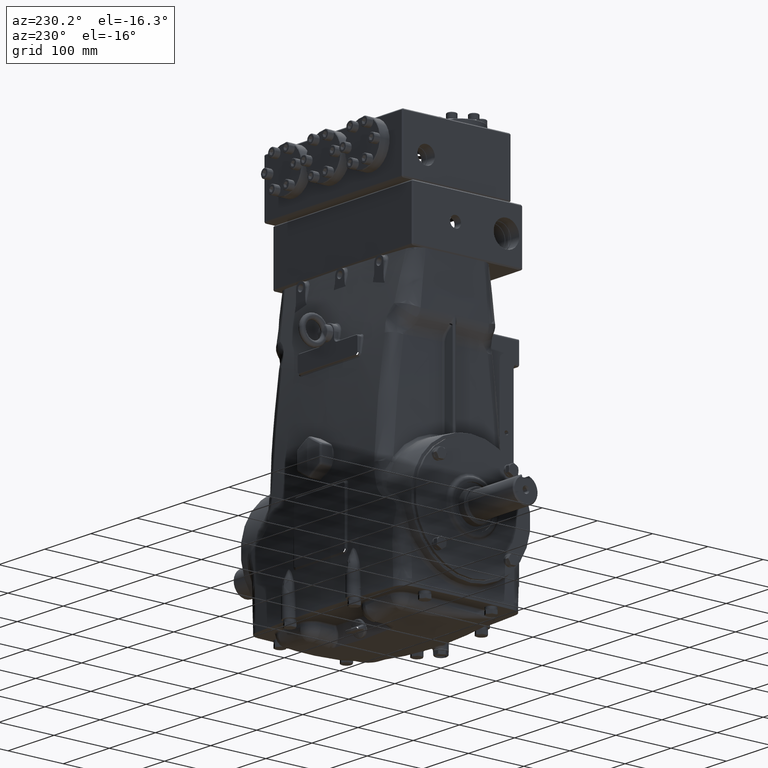
[diagram: clean part render]
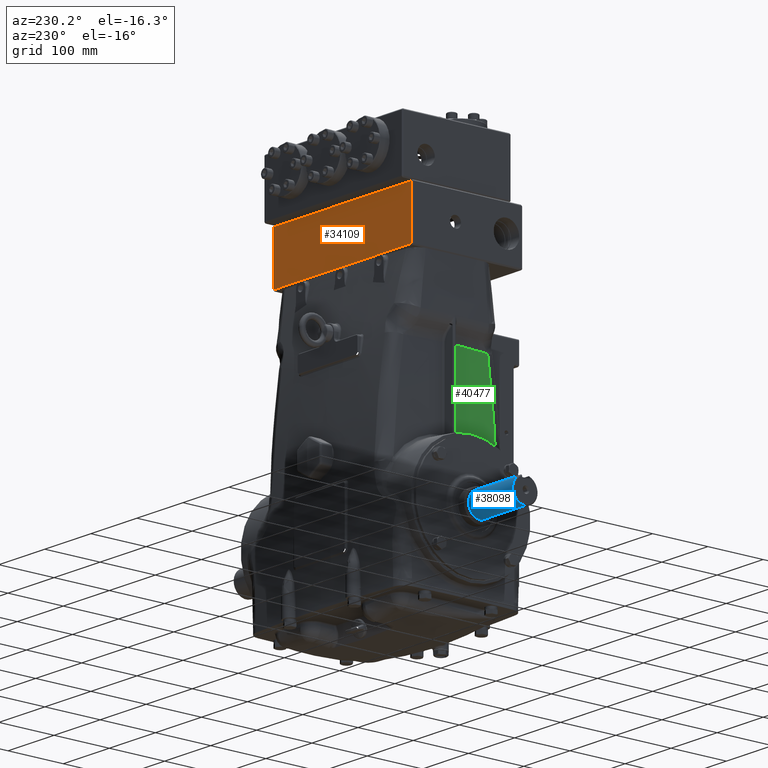
[diagram: same view with three faces highlighted in distinct colors, each labeled with its STEP entity id]
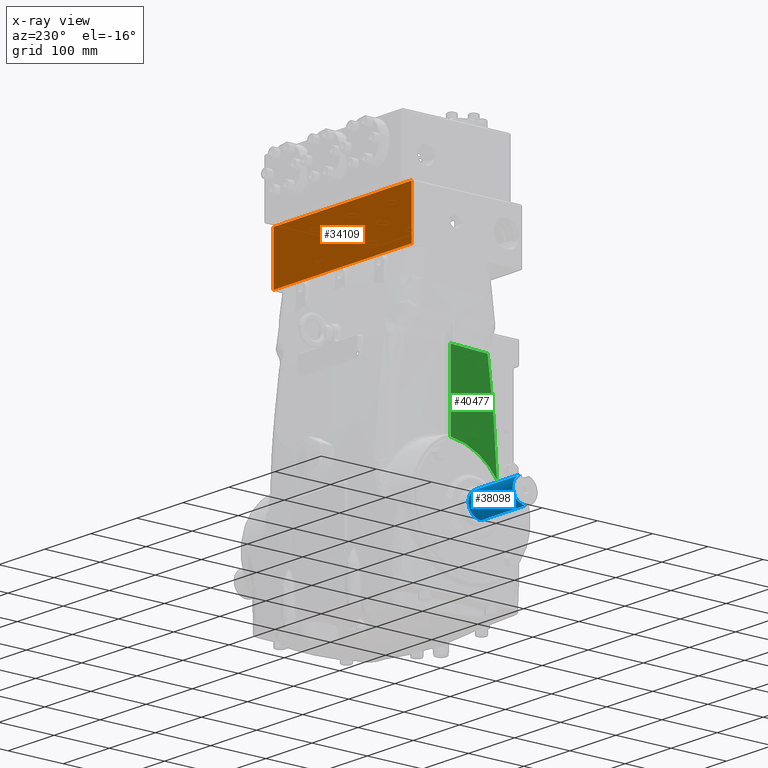
[diagram: x-ray of the same camera — body ghosted, the three highlighted faces saturated]
A machine part, auxiliary view with three faces highlighted in distinct colors.
The next image is the same camera in x-ray (body ghosted, the three faces saturated) — at least one of them is partly hidden behind the body in this view.
Their STEP definitions:

[orange] entity #34109 — the highlighted planar face has unit normal (0, -1, 0).
#4106 = CARTESIAN_POINT ( 'NONE',  ( -5.984251968503936148, 3.070866141732284227, 18.42519685039369648 ) ) ;
#10786 = LINE ( 'NONE', #65255, #40501 ) ;
#13593 = PLANE ( 'NONE',  #21758 ) ;
#15223 = ORIENTED_EDGE ( 'NONE', *, *, #48543, .T. ) ;
#20344 = FACE_OUTER_BOUND ( 'NONE', #65894, .T. ) ;
#20621 = VERTEX_POINT ( 'NONE', #70660 ) ;
#21686 = ORIENTED_EDGE ( 'NONE', *, *, #77510, .T. ) ;
#21758 = AXIS2_PLACEMENT_3D ( 'NONE', #57204, #50785, #43615 ) ;
#22442 = EDGE_CURVE ( 'NONE', #73790, #68590, #40927, .T. ) ;
#28117 = DIRECTION ( 'NONE',  ( 1.000000000000000000, 0.000000000000000000, 0.000000000000000000 ) ) ;
#28878 = LINE ( 'NONE', #59322, #33754 ) ;
#31814 = VECTOR ( 'NONE', #28117, 39.37007874015748143 ) ;
#33754 = VECTOR ( 'NONE', #54865, 39.37007874015748143 ) ;
#34109 = ADVANCED_FACE ( 'NONE', ( #20344 ), #13593, .F. ) ;
#34757 = CARTESIAN_POINT ( 'NONE',  ( 5.905511811023621327, 3.070866141732284227, 18.50393700787401130 ) ) ;
#40385 = DIRECTION ( 'NONE',  ( 0.000000000000000000, 0.000000000000000000, -1.000000000000000000 ) ) ;
#40501 = VECTOR ( 'NONE', #71252, 39.37007874015748143 ) ;
#40798 = CARTESIAN_POINT ( 'NONE',  ( 5.905511811023621327, 3.070866141732284227, 14.84251968503936858 ) ) ;
#40927 = LINE ( 'NONE', #4106, #31814 ) ;
#43615 = DIRECTION ( 'NONE',  ( 0.000000000000000000, -0.000000000000000000, -1.000000000000000000 ) ) ;
#43692 = EDGE_CURVE ( 'NONE', #68590, #76918, #64832, .T. ) ;
#45460 = CARTESIAN_POINT ( 'NONE',  ( -5.905511811023619551, 3.070866141732284227, 18.42519685039369648 ) ) ;
#48543 = EDGE_CURVE ( 'NONE', #20621, #73790, #10786, .T. ) ;
#50785 = DIRECTION ( 'NONE',  ( 0.000000000000000000, -1.000000000000000000, 0.000000000000000000 ) ) ;
#54467 = VECTOR ( 'NONE', #40385, 39.37007874015748143 ) ;
#54865 = DIRECTION ( 'NONE',  ( -1.000000000000000000, 0.000000000000000000, 0.000000000000000000 ) ) ;
#57204 = CARTESIAN_POINT ( 'NONE',  ( -5.984251968503936148, 3.070866141732284227, 18.50393700787401130 ) ) ;
#59322 = CARTESIAN_POINT ( 'NONE',  ( -5.984251968503936148, 3.070866141732284227, 14.84251968503936858 ) ) ;
#59608 = ORIENTED_EDGE ( 'NONE', *, *, #22442, .T. ) ;
#63082 = ORIENTED_EDGE ( 'NONE', *, *, #43692, .T. ) ;
#64832 = LINE ( 'NONE', #34757, #54467 ) ;
#65255 = CARTESIAN_POINT ( 'NONE',  ( -5.905511811023619551, 3.070866141732284227, 18.50393700787401130 ) ) ;
#65894 = EDGE_LOOP ( 'NONE', ( #59608, #63082, #21686, #15223 ) ) ;
#68105 = CARTESIAN_POINT ( 'NONE',  ( 5.905511811023621327, 3.070866141732284227, 18.42519685039369648 ) ) ;
#68590 = VERTEX_POINT ( 'NONE', #68105 ) ;
#70660 = CARTESIAN_POINT ( 'NONE',  ( -5.905511811023619551, 3.070866141732284227, 14.84251968503936858 ) ) ;
#71252 = DIRECTION ( 'NONE',  ( 0.000000000000000000, 0.000000000000000000, 1.000000000000000000 ) ) ;
#73790 = VERTEX_POINT ( 'NONE', #45460 ) ;
#76918 = VERTEX_POINT ( 'NONE', #40798 ) ;
#77510 = EDGE_CURVE ( 'NONE', #76918, #20621, #28878, .T. ) ;

[blue] entity #38098 — the highlighted cylindrical surface (edge-blend (fillet) strip) has radius 22.5 mm, axis along (1, -0, -0).
#1081 = CARTESIAN_POINT ( 'NONE',  ( -8.149606299212598159, 0.000000000000000000, -0.8858267716535433989 ) ) ;
#1526 = LINE ( 'NONE', #30376, #25406 ) ;
#1729 = CIRCLE ( 'NONE', #62940, 0.8858267716535433989 ) ;
#4573 = ORIENTED_EDGE ( 'NONE', *, *, #22834, .T. ) ;
#4799 = CARTESIAN_POINT ( 'NONE',  ( -8.149606299212598159, 0.1928732080931631621, 0.8645744588975492473 ) ) ;
#4987 = CARTESIAN_POINT ( 'NONE',  ( -8.149606299212598159, 0.1928732080931631621, 0.8645744588975492473 ) ) ;
#9686 = CARTESIAN_POINT ( 'NONE',  ( -11.92913385826771488, 0.000000000000000000, -0.8858267716535433989 ) ) ;
#9756 = AXIS2_PLACEMENT_3D ( 'NONE', #68649, #18200, #62243 ) ;
#10877 = CARTESIAN_POINT ( 'NONE',  ( -8.346456692913385211, 0.2755905511811023167, 0.8418663299347676210 ) ) ;
#12056 = DIRECTION ( 'NONE',  ( 1.000000000000000000, 0.000000000000000000, 0.000000000000000000 ) ) ;
#12446 = DIRECTION ( 'NONE',  ( 0.000000000000000000, 0.000000000000000000, 1.000000000000000000 ) ) ;
#16304 = B_SPLINE_CURVE_WITH_KNOTS ( 'NONE', 3,
 ( #16613, #36584, #61025, #78222, #36190, #59440, #71465, #78628, #42205, #65459, #53407, #4987 ),
 .UNSPECIFIED., .F., .F.,
 ( 4, 2, 2, 2, 2, 4 ),
 ( 0.03303125845881526440, 0.03442592873111393476, 0.03512326386726327687, 0.03582059900341261205, 0.03721526927571120608, 0.03860993954800980704 ),
 .UNSPECIFIED. ) ;
#16613 = CARTESIAN_POINT ( 'NONE',  ( -8.346456692913385211, 0.2755905511811023167, 0.8418663299347676210 ) ) ;
#18200 = DIRECTION ( 'NONE',  ( 1.000000000000000000, -0.000000000000000000, -0.000000000000000000 ) ) ;
#19113 = LINE ( 'NONE', #54356, #78478 ) ;
#19941 = EDGE_CURVE ( 'NONE', #32605, #77555, #19113, .T. ) ;
#22165 = EDGE_CURVE ( 'NONE', #76443, #47158, #1526, .T. ) ;
#22301 = ORIENTED_EDGE ( 'NONE', *, *, #19941, .T. ) ;
#22834 = EDGE_CURVE ( 'NONE', #24456, #47158, #38271, .T. ) ;
#23804 = EDGE_CURVE ( 'NONE', #77555, #24456, #16304, .T. ) ;
#24456 = VERTEX_POINT ( 'NONE', #4799 ) ;
#25406 = VECTOR ( 'NONE', #79209, 39.37007874015748143 ) ;
#26828 = CARTESIAN_POINT ( 'NONE',  ( -8.149606299212598159, 0.000000000000000000, 0.000000000000000000 ) ) ;
#30376 = CARTESIAN_POINT ( 'NONE',  ( -12.00787401574803148, 0.000000000000000000, -0.8858267716535433989 ) ) ;
#32605 = VERTEX_POINT ( 'NONE', #51333 ) ;
#35595 = ORIENTED_EDGE ( 'NONE', *, *, #22165, .F. ) ;
#36190 = CARTESIAN_POINT ( 'NONE',  ( -8.273831540955416841, 0.2660081615870608096, 0.8449478243775108144 ) ) ;
#36584 = CARTESIAN_POINT ( 'NONE',  ( -8.328048650773355988, 0.2755905511811023167, 0.8418663299347677320 ) ) ;
#37270 = ORIENTED_EDGE ( 'NONE', *, *, #62625, .T. ) ;
#37528 = DIRECTION ( 'NONE',  ( 1.000000000000000000, -0.000000000000000000, -0.000000000000000000 ) ) ;
#37786 = CYLINDRICAL_SURFACE ( 'NONE', #9756, 0.8858267716535433989 ) ;
#38098 = ADVANCED_FACE ( 'NONE', ( #73051 ), #37786, .T. ) ;
#38271 = CIRCLE ( 'NONE', #61264, 0.8858267716535433989 ) ;
#41835 = ORIENTED_EDGE ( 'NONE', *, *, #23804, .T. ) ;
#42205 = CARTESIAN_POINT ( 'NONE',  ( -8.206439432833089853, 0.2380775653955209403, 0.8533006799603867210 ) ) ;
#46447 = DIRECTION ( 'NONE',  ( -1.000000000000000000, -0.000000000000000000, -0.000000000000000000 ) ) ;
#47158 = VERTEX_POINT ( 'NONE', #1081 ) ;
#51333 = CARTESIAN_POINT ( 'NONE',  ( -11.92913385826771488, 0.2755905511811023723, 0.8418663299347676210 ) ) ;
#53407 = CARTESIAN_POINT ( 'NONE',  ( -8.162281857735829149, 0.2058101458376213333, 0.8616884279027676730 ) ) ;
#53497 = EDGE_LOOP ( 'NONE', ( #35595, #37270, #22301, #41835, #4573 ) ) ;
#54356 = CARTESIAN_POINT ( 'NONE',  ( -12.00787401574803148, 0.2755905511811023723, 0.8418663299347676210 ) ) ;
#59440 = CARTESIAN_POINT ( 'NONE',  ( -8.256256591702035408, 0.2605737831580675623, 0.8466395168440399299 ) ) ;
#61025 = CARTESIAN_POINT ( 'NONE',  ( -8.309843054043708932, 0.2737645916743658425, 0.8424705524659445999 ) ) ;
#61264 = AXIS2_PLACEMENT_3D ( 'NONE', #26828, #46447, #75668 ) ;
#62243 = DIRECTION ( 'NONE',  ( 0.000000000000000000, 0.000000000000000000, -1.000000000000000000 ) ) ;
#62625 = EDGE_CURVE ( 'NONE', #76443, #32605, #1729, .T. ) ;
#62940 = AXIS2_PLACEMENT_3D ( 'NONE', #73675, #12056, #12446 ) ;
#65459 = CARTESIAN_POINT ( 'NONE',  ( -8.176158698653624768, 0.2174496571994400385, 0.8587890451964108607 ) ) ;
#68649 = CARTESIAN_POINT ( 'NONE',  ( -12.00787401574803148, 0.000000000000000000, 0.000000000000000000 ) ) ;
#71465 = CARTESIAN_POINT ( 'NONE',  ( -8.247672423414783793, 0.2574387835319232876, 0.8476013228573848757 ) ) ;
#73051 = FACE_OUTER_BOUND ( 'NONE', #53497, .T. ) ;
#73675 = CARTESIAN_POINT ( 'NONE',  ( -11.92913385826771488, 0.000000000000000000, 0.000000000000000000 ) ) ;
#75668 = DIRECTION ( 'NONE',  ( 0.000000000000000000, 0.000000000000000000, -1.000000000000000000 ) ) ;
#76443 = VERTEX_POINT ( 'NONE', #9686 ) ;
#77555 = VERTEX_POINT ( 'NONE', #10877 ) ;
#78222 = CARTESIAN_POINT ( 'NONE',  ( -8.282834589034013817, 0.2683034557635587403, 0.8442191531324452214 ) ) ;
#78478 = VECTOR ( 'NONE', #37528, 39.37007874015748143 ) ;
#78628 = CARTESIAN_POINT ( 'NONE',  ( -8.222506535139412875, 0.2468160030345873113, 0.8507793906857140653 ) ) ;
#79209 = DIRECTION ( 'NONE',  ( 1.000000000000000000, -0.000000000000000000, -0.000000000000000000 ) ) ;

[green] entity #40477 — the highlighted cylindrical surface (partial cylindrical patch) has radius 1800 mm, axis along (-0, -0, -1).
#865 = VERTEX_POINT ( 'NONE', #25848 ) ;
#1311 = EDGE_CURVE ( 'NONE', #35779, #1913, #11469, .T. ) ;
#1913 = VERTEX_POINT ( 'NONE', #17518 ) ;
#3621 = CARTESIAN_POINT ( 'NONE',  ( -5.133643484345161490, -2.992401122897866639, 9.854557714864595752 ) ) ;
#3641 = CARTESIAN_POINT ( 'NONE',  ( -5.133643484345161490, -2.992401122897866639, 9.854557714864595752 ) ) ;
#5896 = CARTESIAN_POINT ( 'NONE',  ( -5.165066211405673791, -2.123480648525600145, 4.102591311547394426 ) ) ;
#11469 = B_SPLINE_CURVE_WITH_KNOTS ( 'NONE', 3,
 ( #66082, #46064, #78063, #65696, #76874, #3641 ),
 .UNSPECIFIED., .F., .F.,
 ( 4, 2, 4 ),
 ( 0.04389072724056460040, 0.5219453636202823210, 1.000000000000000000 ),
 .UNSPECIFIED. ) ;
#16121 = ORIENTED_EDGE ( 'NONE', *, *, #1311, .T. ) ;
#16729 = CARTESIAN_POINT ( 'NONE',  ( -5.173426028039020963, -1.823537640727141529, 4.244562815254782961 ) ) ;
#17513 = CARTESIAN_POINT ( 'NONE',  ( -5.188021273809281020, -1.119331715516740156, 4.481553960286488447 ) ) ;
#17518 = CARTESIAN_POINT ( 'NONE',  ( -5.133643484345161490, -2.992401122897866639, 9.854557714864595752 ) ) ;
#18218 = CARTESIAN_POINT ( 'NONE',  ( -5.100595819511899442, -3.692304923845031173, 2.773909705513609048 ) ) ;
#21805 = DIRECTION ( 'NONE',  ( -0.000000000000000000, -0.000000000000000000, -1.000000000000000000 ) ) ;
#23888 = CARTESIAN_POINT ( 'NONE',  ( -5.122000726478345811, -3.265992110169547047, 3.282432722865731733 ) ) ;
#24056 = AXIS2_PLACEMENT_3D ( 'NONE', #60260, #61454, #67465 ) ;
#25848 = CARTESIAN_POINT ( 'NONE',  ( -5.196215431379319405, -0.2999892675408380449, 4.609363232524455789 ) ) ;
#27540 = CARTESIAN_POINT ( 'NONE',  ( -5.195514194348325177, -0.4656403134758554940, 4.598683433878208326 ) ) ;
#28328 = CARTESIAN_POINT ( 'NONE',  ( -5.196215431379319405, -0.2999892675408380449, 4.609363232524455789 ) ) ;
#30314 = CARTESIAN_POINT ( 'NONE',  ( -5.134075517361358365, -2.982328130988832537, 3.526786498855915664 ) ) ;
#32161 =( BOUNDED_CURVE ( )  B_SPLINE_CURVE ( 3, ( #3621, #33234, #69700, #75277 ),
 .UNSPECIFIED., .F., .F. ) 
 B_SPLINE_CURVE_WITH_KNOTS ( ( 4, 4 ),
 ( 3.099353990276439319, 3.137359459100741876 ),
 .UNSPECIFIED. ) 
 CURVE ( )  GEOMETRIC_REPRESENTATION_ITEM ( )  RATIONAL_B_SPLINE_CURVE ( ( 1.000000000000000000, 0.9998796356503556471, 0.9998796356503556471, 1.000000000000000000 ) ) 
 REPRESENTATION_ITEM ( '' )  );
#33234 = CARTESIAN_POINT ( 'NONE',  ( -5.171554968579290090, -2.095380891642889321, 9.894907949546533743 ) ) ;
#33438 = LINE ( 'NONE', #65472, #43478 ) ;
#33548 = CARTESIAN_POINT ( 'NONE',  ( -5.193597701055737481, -0.7125648010901552976, 4.569175118487661891 ) ) ;
#35519 = CARTESIAN_POINT ( 'NONE',  ( -5.188646233820334963, -1.079063765704768363, 4.491422358675049686 ) ) ;
#35779 = VERTEX_POINT ( 'NONE', #18218 ) ;
#36317 = CARTESIAN_POINT ( 'NONE',  ( -5.183270686076545175, -1.399232717278946936, 4.406127704644263510 ) ) ;
#36593 = ORIENTED_EDGE ( 'NONE', *, *, #51832, .T. ) ;
#36823 = ORIENTED_EDGE ( 'NONE', *, *, #73864, .T. ) ;
#37481 = EDGE_CURVE ( 'NONE', #865, #35779, #56631, .T. ) ;
#40477 = ADVANCED_FACE ( 'NONE', ( #55827 ), #67083, .T. ) ;
#41136 = CARTESIAN_POINT ( 'NONE',  ( -5.111039276704646639, -3.492136654345209035, 3.040523931603120289 ) ) ;
#41545 = CARTESIAN_POINT ( 'NONE',  ( -5.135414459992356129, -2.950376417423476116, 3.553573117918144675 ) ) ;
#43478 = VECTOR ( 'NONE', #21805, 39.37007874015748143 ) ;
#46064 = CARTESIAN_POINT ( 'NONE',  ( -5.103828160289030080, -3.630351101762269383, 3.958572081734730741 ) ) ;
#47135 = CARTESIAN_POINT ( 'NONE',  ( -5.100595819511899442, -3.692304923845031173, 2.773909705513609048 ) ) ;
#51832 = EDGE_CURVE ( 'NONE', #1913, #70430, #32161, .T. ) ;
#54714 = CARTESIAN_POINT ( 'NONE',  ( -5.158274144286483676, -2.342510202033403210, 3.984190492515086390 ) ) ;
#55827 = FACE_OUTER_BOUND ( 'NONE', #71182, .T. ) ;
#56631 = B_SPLINE_CURVE_WITH_KNOTS ( 'NONE', 3,
 ( #28328, #27540, #33548, #72364, #35519, #17513, #77566, #36317, #79141, #16729, #71971, #66763, #5896, #54714, #59565, #78751, #77962, #59949, #41545, #30314, #23888, #41136, #47135 ),
 .UNSPECIFIED., .F., .F.,
 ( 4, 1, 2, 2, 1, 2, 2, 2, 2, 1, 2, 2, 4 ),
 ( 0.5349815307263874331, 0.5931088393855890040, 0.6221724937151897894, 0.6367043208799900711, 0.6512361480447904638, 0.7093634567039918126, 0.7384271110335925981, 0.7674907653631933835, 0.8256180740223948433, 0.8546817283519956288, 0.8692135555167959104, 0.8837453826815961921, 1.000000000000000000 ),
 .UNSPECIFIED. ) ;
#59371 = CARTESIAN_POINT ( 'NONE',  ( -5.196215436301595325, -0.2999892646748456015, 9.921154763145716871 ) ) ;
#59565 = CARTESIAN_POINT ( 'NONE',  ( -5.153446341030536004, -2.483637912582461915, 3.897761962973881555 ) ) ;
#59949 = CARTESIAN_POINT ( 'NONE',  ( -5.138070648953320330, -2.885926643782870560, 3.606155695421672025 ) ) ;
#60260 = CARTESIAN_POINT ( 'NONE',  ( 65.66929133858268131, 0.000000000000000000, 14.76377952755905376 ) ) ;
#61454 = DIRECTION ( 'NONE',  ( -0.000000000000000000, -0.000000000000000000, -1.000000000000000000 ) ) ;
#65472 = CARTESIAN_POINT ( 'NONE',  ( -5.196215436301595325, -0.2999892646748388847, 14.76377952755905376 ) ) ;
#65696 = CARTESIAN_POINT ( 'NONE',  ( -5.119707369558231136, -3.307770205336899139, 7.501170375224280207 ) ) ;
#66082 = CARTESIAN_POINT ( 'NONE',  ( -5.100595819511899442, -3.692304923845031173, 2.773909705513609048 ) ) ;
#66763 = CARTESIAN_POINT ( 'NONE',  ( -5.167258175948661325, -2.049126111418044349, 4.140242007501620414 ) ) ;
#67083 = CYLINDRICAL_SURFACE ( 'NONE', #24056, 70.86614173228348079 ) ;
#67465 = DIRECTION ( 'NONE',  ( -1.000000000000000000, 0.000000000000000000, 0.000000000000000000 ) ) ;
#69700 = CARTESIAN_POINT ( 'NONE',  ( -5.192414796677748967, -1.197802235764045875, 9.917109637932032484 ) ) ;
#70430 = VERTEX_POINT ( 'NONE', #59371 ) ;
#71182 = EDGE_LOOP ( 'NONE', ( #36593, #36823, #72251, #16121 ) ) ;
#71971 = CARTESIAN_POINT ( 'NONE',  ( -5.171435348120543729, -1.899238648764080439, 4.211186385603319593 ) ) ;
#72251 = ORIENTED_EDGE ( 'NONE', *, *, #37481, .T. ) ;
#72364 = CARTESIAN_POINT ( 'NONE',  ( -5.190432770838087961, -0.9571570281740490183, 4.519572631061041790 ) ) ;
#73864 = EDGE_CURVE ( 'NONE', #70430, #865, #33438, .T. ) ;
#75277 = CARTESIAN_POINT ( 'NONE',  ( -5.196215436301595325, -0.2999892646748456015, 9.921154763145716871 ) ) ;
#76874 = CARTESIAN_POINT ( 'NONE',  ( -5.126400686815228092, -3.163772306234127196, 8.679001979956169066 ) ) ;
#77566 = CARTESIAN_POINT ( 'NONE',  ( -5.186708247956318019, -1.199573562557864070, 4.460752087031348623 ) ) ;
#77962 = CARTESIAN_POINT ( 'NONE',  ( -5.142026609571409779, -2.788334990919527634, 3.683624314767020014 ) ) ;
#78063 = CARTESIAN_POINT ( 'NONE',  ( -5.108421112649686791, -3.541059446430897761, 5.140955426113560378 ) ) ;
#78751 = CARTESIAN_POINT ( 'NONE',  ( -5.145886332172026734, -2.687992169546292498, 3.756877193382564428 ) ) ;
#79141 = CARTESIAN_POINT ( 'NONE',  ( -5.179082564476665596, -1.594163382091492887, 4.338404826011008630 ) ) ;